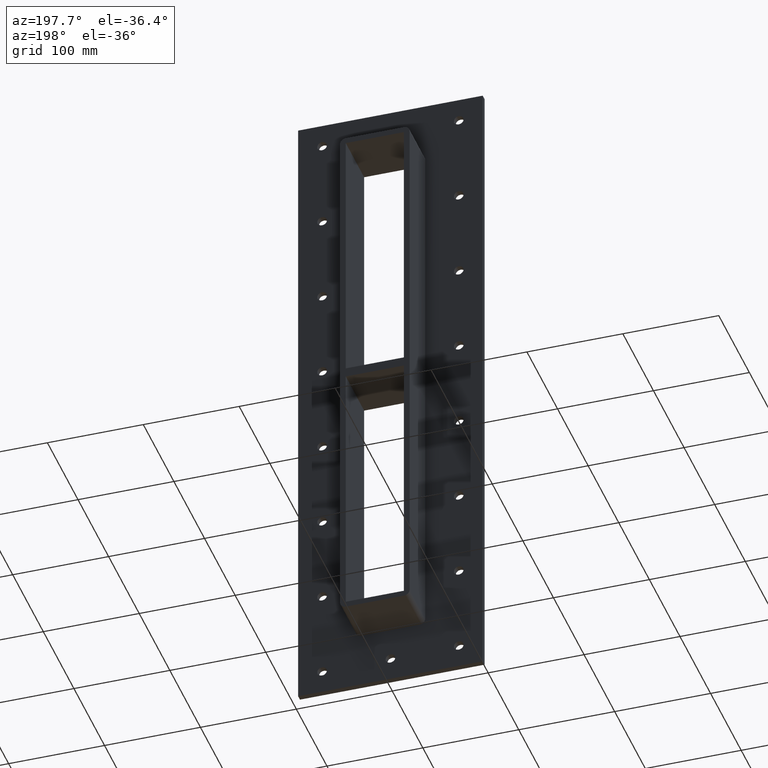
[diagram: clean part render]
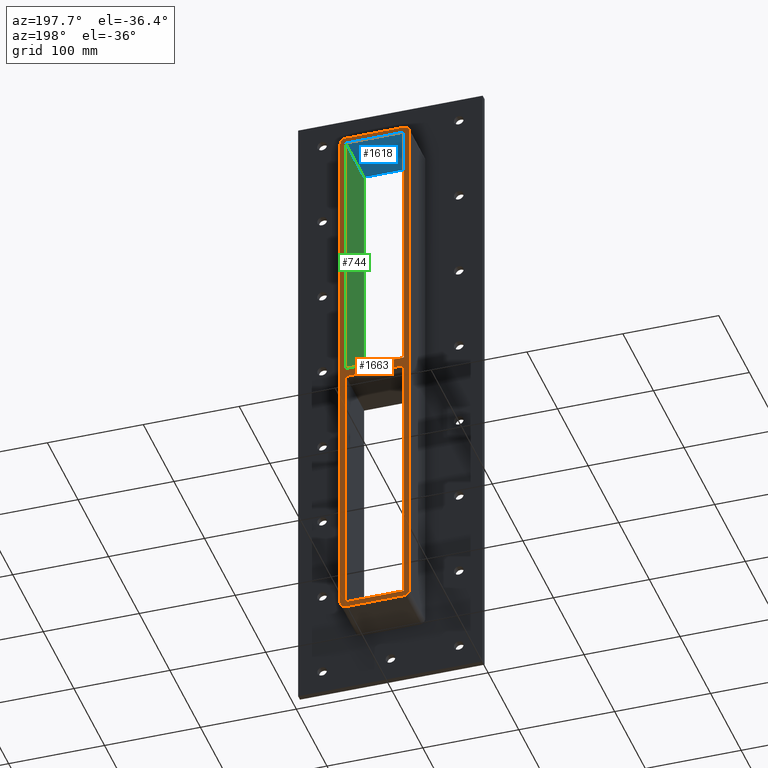
[diagram: same view with three faces highlighted in distinct colors, each labeled with its STEP entity id]
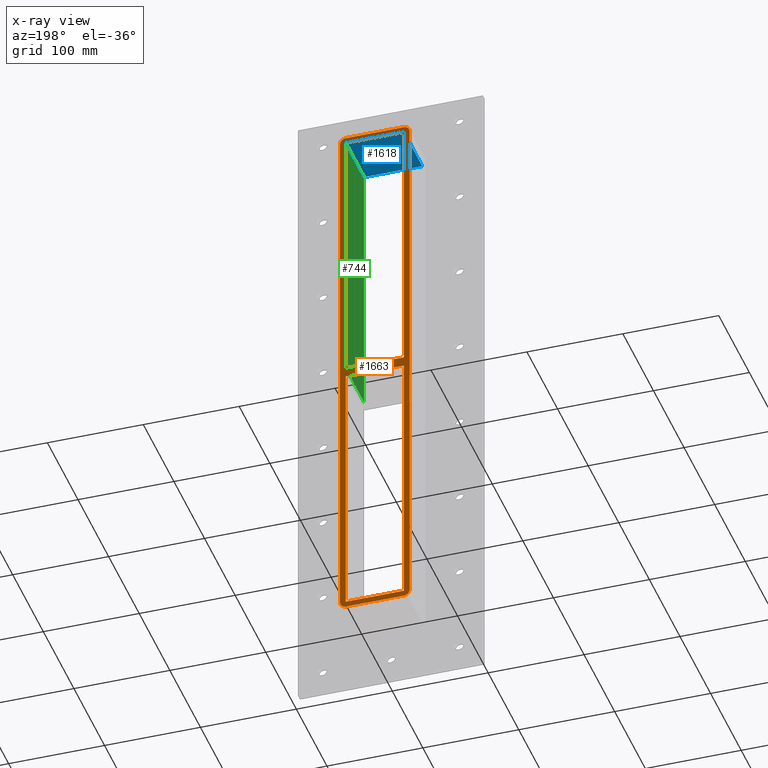
[diagram: x-ray of the same camera — body ghosted, the three highlighted faces saturated]
A machine part, auxiliary view with three faces highlighted in distinct colors.
The next image is the same camera in x-ray (body ghosted, the three faces saturated) — at least one of them is partly hidden behind the body in this view.
Their STEP definitions:

[orange] entity #1663 — the highlighted planar face has unit normal (0, 1, 0).
#587=CARTESIAN_POINT('',(-30.249999999999684,57.0,-5.000000000011085));
#588=VERTEX_POINT('',#587);
#595=CARTESIAN_POINT('',(30.249999999999893,57.0,-5.000000000011085));
#596=VERTEX_POINT('',#595);
#597=CARTESIAN_POINT('',(30.249999999999897,57.0,-5.000000000011085));
#598=DIRECTION('',(-1.0,0.0,0.0));
#599=VECTOR('',#598,60.499999999999581);
#600=LINE('',#597,#599);
#601=EDGE_CURVE('',#596,#588,#600,.T.);
#627=CARTESIAN_POINT('',(30.249999999999893,57.0,5.0));
#628=VERTEX_POINT('',#627);
#635=CARTESIAN_POINT('',(-30.249999999999687,57.0,5.0));
#636=VERTEX_POINT('',#635);
#637=CARTESIAN_POINT('',(-30.249999999999687,57.0,5.0));
#638=DIRECTION('',(1.0,0.0,0.0));
#639=VECTOR('',#638,60.499999999999581);
#640=LINE('',#637,#639);
#641=EDGE_CURVE('',#636,#628,#640,.T.);
#658=CARTESIAN_POINT('',(-30.250000000000004,57.0,283.00000000000006));
#659=VERTEX_POINT('',#658);
#660=CARTESIAN_POINT('',(-30.250000000000004,57.0,283.0));
#661=DIRECTION('',(0.0,0.0,-1.0));
#662=VECTOR('',#661,278.0);
#663=LINE('',#660,#662);
#664=EDGE_CURVE('',#659,#636,#663,.T.);
#689=CARTESIAN_POINT('',(30.250000000000004,57.0,-283.00000000000006));
#690=VERTEX_POINT('',#689);
#691=CARTESIAN_POINT('',(30.250000000000004,57.0,-283.0));
#692=DIRECTION('',(0.0,0.0,1.0));
#693=VECTOR('',#692,277.99999999998892);
#694=LINE('',#691,#693);
#695=EDGE_CURVE('',#690,#596,#694,.T.);
#728=CARTESIAN_POINT('',(30.250000000000004,57.0,283.00000000000006));
#729=VERTEX_POINT('',#728);
#736=CARTESIAN_POINT('',(30.250000000000004,57.0,5.0));
#737=DIRECTION('',(0.0,0.0,1.0));
#738=VECTOR('',#737,278.0);
#739=LINE('',#736,#738);
#740=EDGE_CURVE('',#628,#729,#739,.T.);
#1155=CARTESIAN_POINT('',(-30.250000000000004,57.0,-283.00000000000006));
#1156=VERTEX_POINT('',#1155);
#1163=CARTESIAN_POINT('',(-30.250000000000004,57.0,-5.000000000011085));
#1164=DIRECTION('',(0.0,0.0,-1.0));
#1165=VECTOR('',#1164,277.99999999998897);
#1166=LINE('',#1163,#1165);
#1167=EDGE_CURVE('',#588,#1156,#1166,.T.);
#1210=CARTESIAN_POINT('',(36.250000000000007,57.0,283.0));
#1211=VERTEX_POINT('',#1210);
#1218=CARTESIAN_POINT('',(30.25,57.0,289.0));
#1219=VERTEX_POINT('',#1218);
#1220=CARTESIAN_POINT('',(30.250000000000004,57.0,283.0));
#1221=DIRECTION('',(0.0,-1.0,0.0));
#1222=DIRECTION('',(0.707106781186546,0.0,0.707106781186549));
#1223=AXIS2_PLACEMENT_3D('',#1220,#1221,#1222);
#1224=CIRCLE('',#1223,6.000000000000001);
#1225=EDGE_CURVE('',#1211,#1219,#1224,.T.);
#1266=CARTESIAN_POINT('',(36.250000000000007,57.0,-283.0));
#1267=VERTEX_POINT('',#1266);
#1274=CARTESIAN_POINT('',(36.250000000000007,57.0,283.0));
#1275=DIRECTION('',(0.0,0.0,-1.0));
#1276=VECTOR('',#1275,566.0);
#1277=LINE('',#1274,#1276);
#1278=EDGE_CURVE('',#1211,#1267,#1277,.T.);
#1339=CARTESIAN_POINT('',(30.250000000000004,57.0,-289.0));
#1340=VERTEX_POINT('',#1339);
#1347=CARTESIAN_POINT('',(30.250000000000004,57.0,-283.0));
#1348=DIRECTION('',(0.0,-1.0,0.0));
#1349=DIRECTION('',(0.707106781186546,0.0,-0.707106781186549));
#1350=AXIS2_PLACEMENT_3D('',#1347,#1348,#1349);
#1351=CIRCLE('',#1350,6.000000000000001);
#1352=EDGE_CURVE('',#1340,#1267,#1351,.T.);
#1413=CARTESIAN_POINT('',(-30.25,57.0,-289.0));
#1414=VERTEX_POINT('',#1413);
#1421=CARTESIAN_POINT('',(30.250000000000007,57.0,-289.0));
#1422=DIRECTION('',(-1.0,0.0,0.0));
#1423=VECTOR('',#1422,60.5);
#1424=LINE('',#1421,#1423);
#1425=EDGE_CURVE('',#1340,#1414,#1424,.T.);
#1517=CARTESIAN_POINT('',(-36.250000000000007,57.0,-283.0));
#1518=VERTEX_POINT('',#1517);
#1525=CARTESIAN_POINT('',(-30.250000000000004,57.0,-283.0));
#1526=DIRECTION('',(0.0,-1.0,0.0));
#1527=DIRECTION('',(-0.707106781186546,0.0,-0.707106781186549));
#1528=AXIS2_PLACEMENT_3D('',#1525,#1526,#1527);
#1529=CIRCLE('',#1528,6.000000000000001);
#1530=EDGE_CURVE('',#1518,#1414,#1529,.T.);
#1542=CARTESIAN_POINT('',(-36.250000000000007,57.0,283.0));
#1543=VERTEX_POINT('',#1542);
#1550=CARTESIAN_POINT('',(-36.250000000000007,57.0,-283.0));
#1551=DIRECTION('',(0.0,0.0,1.0));
#1552=VECTOR('',#1551,566.0);
#1553=LINE('',#1550,#1552);
#1554=EDGE_CURVE('',#1518,#1543,#1553,.T.);
#1566=CARTESIAN_POINT('',(-30.250000000000004,57.0,289.0));
#1567=VERTEX_POINT('',#1566);
#1574=CARTESIAN_POINT('',(-30.250000000000004,57.0,283.0));
#1575=DIRECTION('',(0.0,-1.0,0.0));
#1576=DIRECTION('',(-0.707106781186546,0.0,0.707106781186549));
#1577=AXIS2_PLACEMENT_3D('',#1574,#1575,#1576);
#1578=CIRCLE('',#1577,6.000000000000001);
#1579=EDGE_CURVE('',#1567,#1543,#1578,.T.);
#1592=CARTESIAN_POINT('',(-30.250000000000007,57.0,289.0));
#1593=DIRECTION('',(1.0,0.0,0.0));
#1594=VECTOR('',#1593,60.5);
#1595=LINE('',#1592,#1594);
#1596=EDGE_CURVE('',#1567,#1219,#1595,.T.);
#1608=CARTESIAN_POINT('',(30.250000000000007,57.0,283.0));
#1609=DIRECTION('',(-1.0,0.0,0.0));
#1610=VECTOR('',#1609,60.500000000000014);
#1611=LINE('',#1608,#1610);
#1612=EDGE_CURVE('',#729,#659,#1611,.T.);
#1627=CARTESIAN_POINT('',(-30.250000000000007,57.0,-283.00000000000006));
#1628=DIRECTION('',(1.0,0.0,0.0));
#1629=VECTOR('',#1628,60.500000000000014);
#1630=LINE('',#1627,#1629);
#1631=EDGE_CURVE('',#1156,#690,#1630,.T.);
#1636=CARTESIAN_POINT('',(0.0,57.0,0.0));
#1637=DIRECTION('',(0.0,1.0,0.0));
#1638=DIRECTION('',(0.0,0.0,1.0));
#1639=AXIS2_PLACEMENT_3D('',#1636,#1637,#1638);
#1640=PLANE('',#1639);
#1641=ORIENTED_EDGE('',*,*,#1352,.F.);
#1642=ORIENTED_EDGE('',*,*,#1425,.T.);
#1643=ORIENTED_EDGE('',*,*,#1530,.F.);
#1644=ORIENTED_EDGE('',*,*,#1554,.T.);
#1645=ORIENTED_EDGE('',*,*,#1579,.F.);
#1646=ORIENTED_EDGE('',*,*,#1596,.T.);
#1647=ORIENTED_EDGE('',*,*,#1225,.F.);
#1648=ORIENTED_EDGE('',*,*,#1278,.T.);
#1649=EDGE_LOOP('',(#1641,#1642,#1643,#1644,#1645,#1646,#1647,#1648));
#1650=FACE_OUTER_BOUND('',#1649,.T.);
#1651=ORIENTED_EDGE('',*,*,#1167,.T.);
#1652=ORIENTED_EDGE('',*,*,#1631,.T.);
#1653=ORIENTED_EDGE('',*,*,#695,.T.);
#1654=ORIENTED_EDGE('',*,*,#601,.T.);
#1655=EDGE_LOOP('',(#1651,#1652,#1653,#1654));
#1656=FACE_BOUND('',#1655,.T.);
#1657=ORIENTED_EDGE('',*,*,#641,.T.);
#1658=ORIENTED_EDGE('',*,*,#740,.T.);
#1659=ORIENTED_EDGE('',*,*,#1612,.T.);
#1660=ORIENTED_EDGE('',*,*,#664,.T.);
#1661=EDGE_LOOP('',(#1657,#1658,#1659,#1660));
#1662=FACE_BOUND('',#1661,.T.);
#1663=ADVANCED_FACE('',(#1650,#1656,#1662),#1640,.T.);

[blue] entity #1618 — the highlighted planar face has unit normal (0, 0, 1).
#658=CARTESIAN_POINT('',(-30.250000000000004,57.0,283.00000000000006));
#659=VERTEX_POINT('',#658);
#666=CARTESIAN_POINT('',(-30.250000000000004,-3.0,283.00000000000006));
#667=VERTEX_POINT('',#666);
#668=CARTESIAN_POINT('',(-30.250000000000004,-3.0,283.0));
#669=DIRECTION('',(0.0,1.0,0.0));
#670=VECTOR('',#669,60.0);
#671=LINE('',#668,#670);
#672=EDGE_CURVE('',#667,#659,#671,.T.);
#720=CARTESIAN_POINT('',(30.250000000000004,-3.0,283.00000000000006));
#721=VERTEX_POINT('',#720);
#728=CARTESIAN_POINT('',(30.250000000000004,57.0,283.00000000000006));
#729=VERTEX_POINT('',#728);
#730=CARTESIAN_POINT('',(30.250000000000004,-3.0,283.0));
#731=DIRECTION('',(0.0,1.0,0.0));
#732=VECTOR('',#731,60.0);
#733=LINE('',#730,#732);
#734=EDGE_CURVE('',#721,#729,#733,.T.);
#1489=CARTESIAN_POINT('',(-30.250000000000004,-3.0,283.0));
#1490=DIRECTION('',(1.0,0.0,0.0));
#1491=VECTOR('',#1490,60.500000000000014);
#1492=LINE('',#1489,#1491);
#1493=EDGE_CURVE('',#667,#721,#1492,.T.);
#1602=CARTESIAN_POINT('',(-30.250000000000004,0.0,283.0));
#1603=DIRECTION('',(0.0,0.0,1.0));
#1604=DIRECTION('',(1.0,0.0,0.0));
#1605=AXIS2_PLACEMENT_3D('',#1602,#1603,#1604);
#1606=PLANE('',#1605);
#1607=ORIENTED_EDGE('',*,*,#672,.T.);
#1608=CARTESIAN_POINT('',(30.250000000000007,57.0,283.0));
#1609=DIRECTION('',(-1.0,0.0,0.0));
#1610=VECTOR('',#1609,60.500000000000014);
#1611=LINE('',#1608,#1610);
#1612=EDGE_CURVE('',#729,#659,#1611,.T.);
#1613=ORIENTED_EDGE('',*,*,#1612,.F.);
#1614=ORIENTED_EDGE('',*,*,#734,.F.);
#1615=ORIENTED_EDGE('',*,*,#1493,.F.);
#1616=EDGE_LOOP('',(#1607,#1613,#1614,#1615));
#1617=FACE_OUTER_BOUND('',#1616,.T.);
#1618=ADVANCED_FACE('',(#1617),#1606,.F.);

[green] entity #744 — the highlighted planar face has unit normal (1, 0, 0).
#619=CARTESIAN_POINT('',(30.249999999999897,-3.0,5.0));
#620=VERTEX_POINT('',#619);
#627=CARTESIAN_POINT('',(30.249999999999893,57.0,5.0));
#628=VERTEX_POINT('',#627);
#629=CARTESIAN_POINT('',(30.250000000000004,57.000000000000007,5.0));
#630=DIRECTION('',(0.0,-1.0,0.0));
#631=VECTOR('',#630,60.000000000000007);
#632=LINE('',#629,#631);
#633=EDGE_CURVE('',#628,#620,#632,.T.);
#714=CARTESIAN_POINT('',(30.250000000000004,0.0,283.0));
#715=DIRECTION('',(1.0,0.0,0.0));
#716=DIRECTION('',(0.0,0.0,-1.0));
#717=AXIS2_PLACEMENT_3D('',#714,#715,#716);
#718=PLANE('',#717);
#719=ORIENTED_EDGE('',*,*,#633,.T.);
#720=CARTESIAN_POINT('',(30.250000000000004,-3.0,283.00000000000006));
#721=VERTEX_POINT('',#720);
#722=CARTESIAN_POINT('',(30.250000000000004,-3.0,283.0));
#723=DIRECTION('',(0.0,0.0,-1.0));
#724=VECTOR('',#723,278.0);
#725=LINE('',#722,#724);
#726=EDGE_CURVE('',#721,#620,#725,.T.);
#727=ORIENTED_EDGE('',*,*,#726,.F.);
#728=CARTESIAN_POINT('',(30.250000000000004,57.0,283.00000000000006));
#729=VERTEX_POINT('',#728);
#730=CARTESIAN_POINT('',(30.250000000000004,-3.0,283.0));
#731=DIRECTION('',(0.0,1.0,0.0));
#732=VECTOR('',#731,60.0);
#733=LINE('',#730,#732);
#734=EDGE_CURVE('',#721,#729,#733,.T.);
#735=ORIENTED_EDGE('',*,*,#734,.T.);
#736=CARTESIAN_POINT('',(30.250000000000004,57.0,5.0));
#737=DIRECTION('',(0.0,0.0,1.0));
#738=VECTOR('',#737,278.0);
#739=LINE('',#736,#738);
#740=EDGE_CURVE('',#628,#729,#739,.T.);
#741=ORIENTED_EDGE('',*,*,#740,.F.);
#742=EDGE_LOOP('',(#719,#727,#735,#741));
#743=FACE_OUTER_BOUND('',#742,.T.);
#744=ADVANCED_FACE('',(#743),#718,.F.);